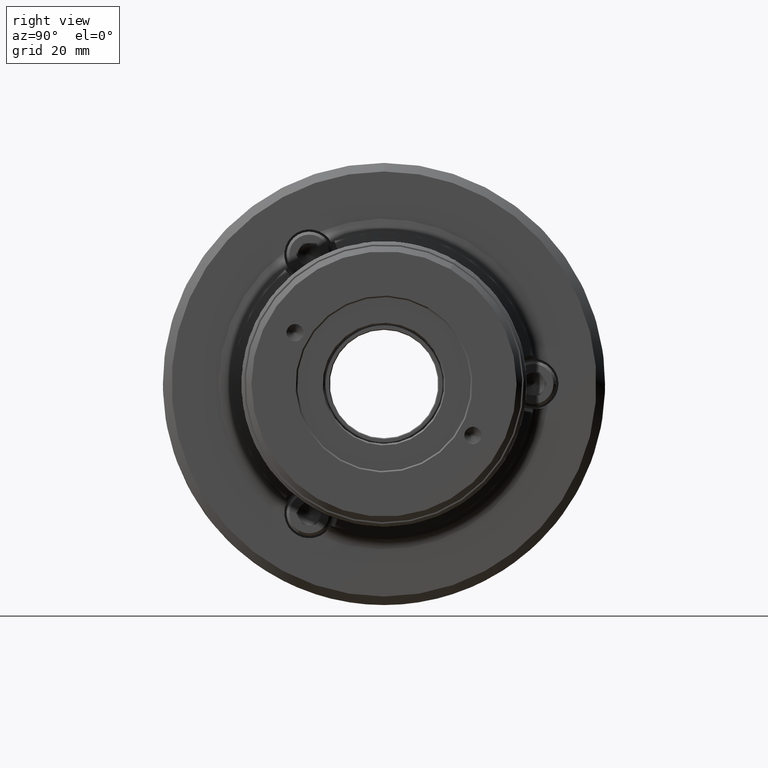
[diagram: clean part render]
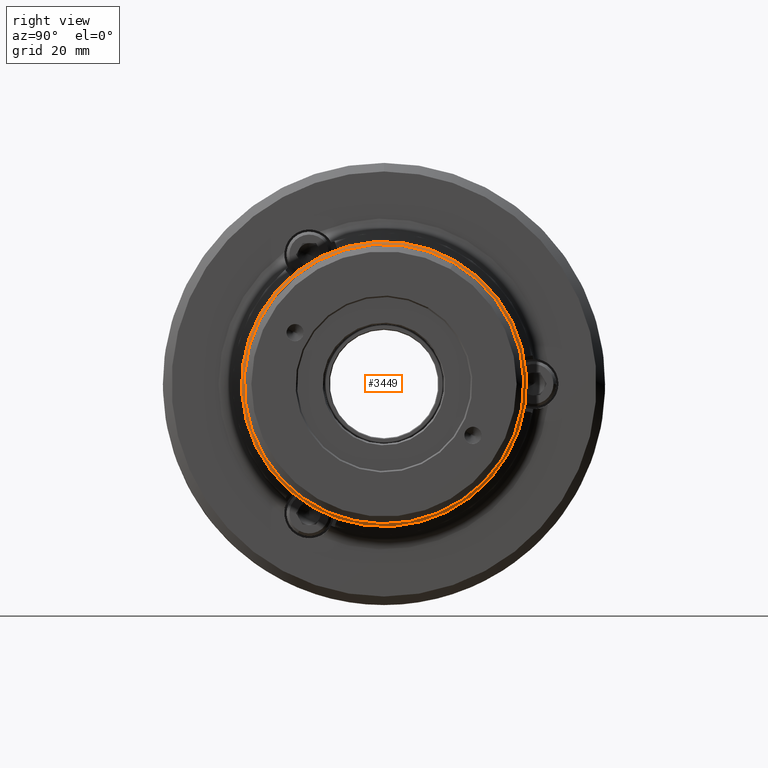
[diagram: same view with one face highlighted and labeled with its STEP entity id]
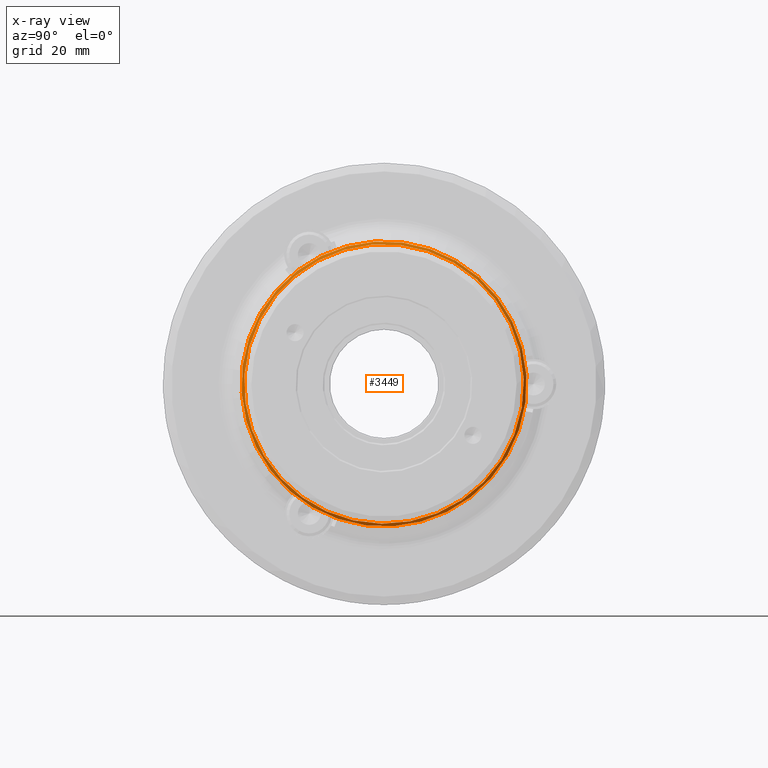
[diagram: x-ray of the same camera — body ghosted, the highlighted face saturated]
A machine part, right view. The second image highlights one B-rep face of the part: STEP entity #3449.
The next image is the same camera in x-ray: the body ghosted, the highlighted face saturated — about 0% of this face is hidden behind the body in this view.
In plain terms, the highlighted conical surface has half-angle 45 deg.
Its self-contained STEP definition (entity closure, byte-faithful):
#425 = DIRECTION ( 'NONE',  ( 0.0000000000000000000, -1.000000000000000000, 0.0000000000000000000 ) ) ;
#631 = AXIS2_PLACEMENT_3D ( 'NONE', #6073, #1792, #3853 ) ;
#643 = AXIS2_PLACEMENT_3D ( 'NONE', #3027, #4893, #425 ) ;
#887 = CARTESIAN_POINT ( 'NONE',  ( 25.49999999999999645, -48.99999999999998579, 0.0000000000000000000 ) ) ;
#1600 = EDGE_LOOP ( 'NONE', ( #5127 ) ) ;
#1792 = DIRECTION ( 'NONE',  ( 1.000000000000000000, 2.170061909168716300E-32, 0.0000000000000000000 ) ) ;
#1793 = CIRCLE ( 'NONE', #643, 50.00000000000000000 ) ;
#2384 = CONICAL_SURFACE ( 'NONE', #5115, 50.00000000000000000, 0.7853981633974517207 ) ;
#3027 = CARTESIAN_POINT ( 'NONE',  ( 24.49999999999998579, 5.316651677463352636E-31, 0.0000000000000000000 ) ) ;
#3061 = VERTEX_POINT ( 'NONE', #4932 ) ;
#3449 = ADVANCED_FACE ( 'NONE', ( #5563, #5529 ), #2384, .T. ) ;
#3853 = DIRECTION ( 'NONE',  ( 0.0000000000000000000, -1.000000000000000000, 0.0000000000000000000 ) ) ;
#4343 = CIRCLE ( 'NONE', #631, 48.99999999999998579 ) ;
#4489 = EDGE_CURVE ( 'NONE', #5364, #5364, #4343, .T. ) ;
#4652 = EDGE_CURVE ( 'NONE', #3061, #3061, #1793, .T. ) ;
#4893 = DIRECTION ( 'NONE',  ( -1.000000000000000000, -2.170061909168713563E-32, -0.0000000000000000000 ) ) ;
#4932 = CARTESIAN_POINT ( 'NONE',  ( 24.49999999999998579, -50.00000000000000000, 0.0000000000000000000 ) ) ;
#5115 = AXIS2_PLACEMENT_3D ( 'NONE', #5505, #5480, #5267 ) ;
#5127 = ORIENTED_EDGE ( 'NONE', *, *, #4489, .F. ) ;
#5205 = ORIENTED_EDGE ( 'NONE', *, *, #4652, .F. ) ;
#5267 = DIRECTION ( 'NONE',  ( 0.0000000000000000000, -1.000000000000000000, 0.0000000000000000000 ) ) ;
#5364 = VERTEX_POINT ( 'NONE', #887 ) ;
#5480 = DIRECTION ( 'NONE',  ( -1.000000000000000000, -2.170061909168713563E-32, -0.0000000000000000000 ) ) ;
#5505 = CARTESIAN_POINT ( 'NONE',  ( 24.49999999999998579, 5.316651677463352636E-31, 0.0000000000000000000 ) ) ;
#5529 = FACE_OUTER_BOUND ( 'NONE', #5834, .T. ) ;
#5563 = FACE_BOUND ( 'NONE', #1600, .T. ) ;
#5834 = EDGE_LOOP ( 'NONE', ( #5205 ) ) ;
#6073 = CARTESIAN_POINT ( 'NONE',  ( 25.49999999999999645, 5.533657868380225799E-31, 0.0000000000000000000 ) ) ;